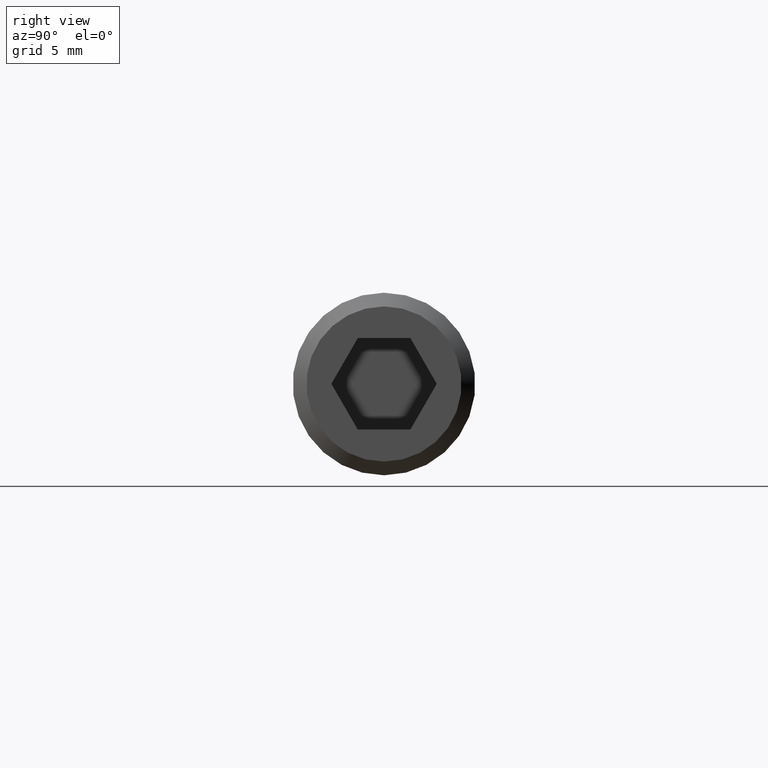
[diagram: clean part render]
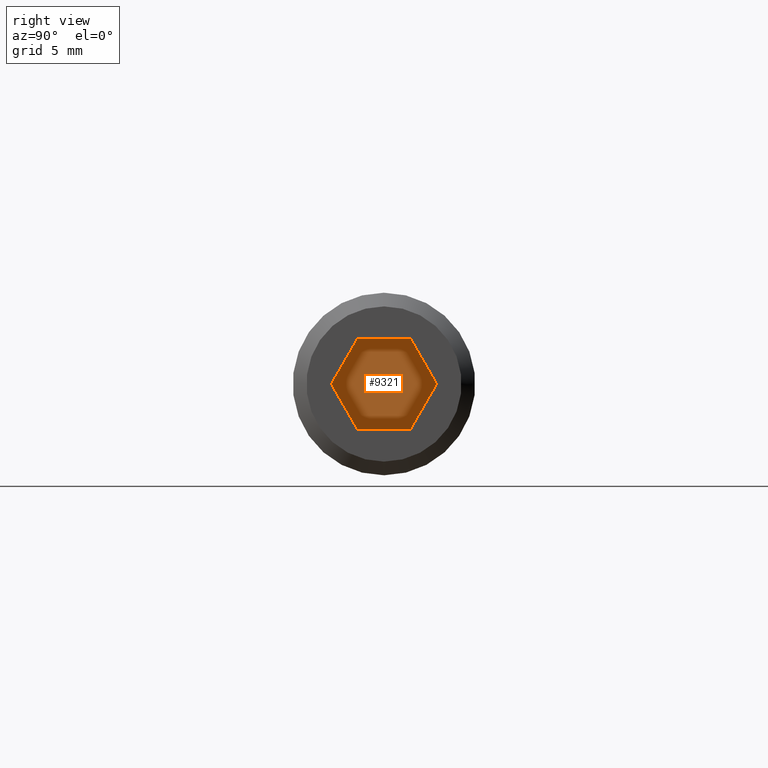
[diagram: same view with one face highlighted and labeled with its STEP entity id]
A machine part, right view. The second image highlights one B-rep face of the part: STEP entity #9321.
In plain terms, the highlighted planar face has unit normal (1, -0, 0).
Its self-contained STEP definition (entity closure, byte-faithful):
#113 = DIRECTION ( 'NONE',  ( 0.0000000000000000000, -0.4999999999999999400, -0.8660254037844386000 ) ) ;
#655 = CARTESIAN_POINT ( 'NONE',  ( 24.99999999999999600, -3.464101615137753900, -2.000000000000000000 ) ) ;
#668 = CARTESIAN_POINT ( 'NONE',  ( 24.99999999999999600, 1.154700538379252100, 1.999999999999999600 ) ) ;
#983 = EDGE_CURVE ( 'NONE', #8704, #10361, #6640, .T. ) ;
#1140 = EDGE_CURVE ( 'NONE', #5270, #8411, #9227, .T. ) ;
#1436 = EDGE_CURVE ( 'NONE', #10361, #5270, #2176, .T. ) ;
#2024 = VECTOR ( 'NONE', #5801, 1000.000000000000000 ) ;
#2176 = LINE ( 'NONE', #7506, #7085 ) ;
#2649 = CARTESIAN_POINT ( 'NONE',  ( 24.99999999999999600, 1.154700538379252400, -2.000000000000000000 ) ) ;
#2680 = CARTESIAN_POINT ( 'NONE',  ( 24.99999999999999600, -1.154700538379251000, 1.999999999999999600 ) ) ;
#2686 = CARTESIAN_POINT ( 'NONE',  ( 24.99999999999999600, -1.154700538379252400, -2.000000000000000000 ) ) ;
#2702 = AXIS2_PLACEMENT_3D ( 'NONE', #655, #11316, #12300 ) ;
#2768 = VERTEX_POINT ( 'NONE', #2649 ) ;
#2854 = ORIENTED_EDGE ( 'NONE', *, *, #12650, .T. ) ;
#3314 = DIRECTION ( 'NONE',  ( 0.0000000000000000000, 0.4999999999999999400, 0.8660254037844386000 ) ) ;
#3367 = DIRECTION ( 'NONE',  ( 0.0000000000000000000, -1.000000000000000000, 0.0000000000000000000 ) ) ;
#4019 = VECTOR ( 'NONE', #113, 1000.000000000000100 ) ;
#4123 = EDGE_CURVE ( 'NONE', #2768, #8704, #5846, .T. ) ;
#4287 = LINE ( 'NONE', #12352, #8879 ) ;
#4754 = CARTESIAN_POINT ( 'NONE',  ( 24.99999999999999600, 2.309401076758503400, -1.190619091596349400E-015 ) ) ;
#5234 = VECTOR ( 'NONE', #8732, 1000.000000000000000 ) ;
#5270 = VERTEX_POINT ( 'NONE', #2680 ) ;
#5654 = EDGE_CURVE ( 'NONE', #8411, #7782, #4287, .T. ) ;
#5716 = CARTESIAN_POINT ( 'NONE',  ( 24.99999999999999600, -1.154700538379252400, -2.000000000000000000 ) ) ;
#5801 = DIRECTION ( 'NONE',  ( 0.0000000000000000000, 1.000000000000000000, 0.0000000000000000000 ) ) ;
#5846 = LINE ( 'NONE', #8177, #7832 ) ;
#6640 = LINE ( 'NONE', #4754, #5234 ) ;
#6663 = ORIENTED_EDGE ( 'NONE', *, *, #5654, .T. ) ;
#6743 = ORIENTED_EDGE ( 'NONE', *, *, #983, .T. ) ;
#7085 = VECTOR ( 'NONE', #3367, 1000.000000000000000 ) ;
#7466 = ORIENTED_EDGE ( 'NONE', *, *, #1436, .T. ) ;
#7506 = CARTESIAN_POINT ( 'NONE',  ( 24.99999999999999600, 1.154700538379252100, 1.999999999999999600 ) ) ;
#7782 = VERTEX_POINT ( 'NONE', #2686 ) ;
#7784 = ORIENTED_EDGE ( 'NONE', *, *, #4123, .T. ) ;
#7832 = VECTOR ( 'NONE', #3314, 1000.000000000000100 ) ;
#8089 = CARTESIAN_POINT ( 'NONE',  ( 24.99999999999999600, 2.309401076758503400, -1.190619091596349400E-015 ) ) ;
#8177 = CARTESIAN_POINT ( 'NONE',  ( 24.99999999999999600, 1.154700538379252400, -2.000000000000000000 ) ) ;
#8411 = VERTEX_POINT ( 'NONE', #8743 ) ;
#8704 = VERTEX_POINT ( 'NONE', #8089 ) ;
#8732 = DIRECTION ( 'NONE',  ( 0.0000000000000000000, -0.4999999999999997200, 0.8660254037844388200 ) ) ;
#8743 = CARTESIAN_POINT ( 'NONE',  ( 24.99999999999999600, -2.309401076758502500, 1.256016596573813500E-016 ) ) ;
#8879 = VECTOR ( 'NONE', #12311, 1000.000000000000000 ) ;
#9227 = LINE ( 'NONE', #10917, #4019 ) ;
#9321 = ADVANCED_FACE ( 'NONE', ( #9426 ), #9336, .T. ) ;
#9336 = PLANE ( 'NONE',  #2702 ) ;
#9426 = FACE_OUTER_BOUND ( 'NONE', #12640, .T. ) ;
#9689 = LINE ( 'NONE', #5716, #2024 ) ;
#10267 = ORIENTED_EDGE ( 'NONE', *, *, #1140, .T. ) ;
#10361 = VERTEX_POINT ( 'NONE', #668 ) ;
#10917 = CARTESIAN_POINT ( 'NONE',  ( 24.99999999999999600, -1.154700538379251000, 1.999999999999999600 ) ) ;
#11316 = DIRECTION ( 'NONE',  ( 1.000000000000000000, -0.0000000000000000000, 0.0000000000000000000 ) ) ;
#12300 = DIRECTION ( 'NONE',  ( 0.0000000000000000000, 0.0000000000000000000, -1.000000000000000000 ) ) ;
#12311 = DIRECTION ( 'NONE',  ( 0.0000000000000000000, 0.4999999999999995600, -0.8660254037844389300 ) ) ;
#12352 = CARTESIAN_POINT ( 'NONE',  ( 24.99999999999999600, -2.309401076758502500, 1.256016596573813500E-016 ) ) ;
#12640 = EDGE_LOOP ( 'NONE', ( #10267, #6663, #2854, #7784, #6743, #7466 ) ) ;
#12650 = EDGE_CURVE ( 'NONE', #7782, #2768, #9689, .T. ) ;